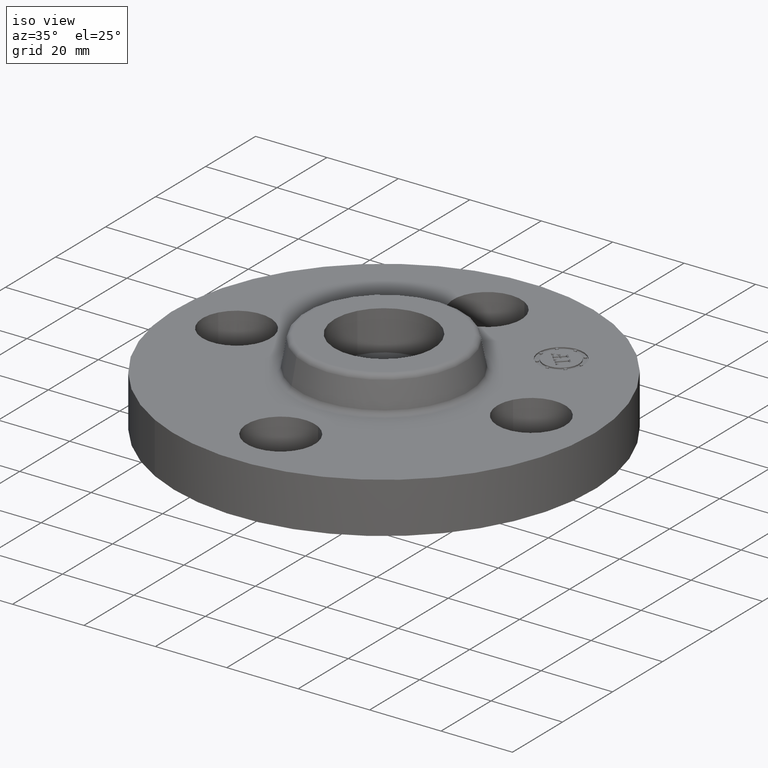
[diagram: clean part render]
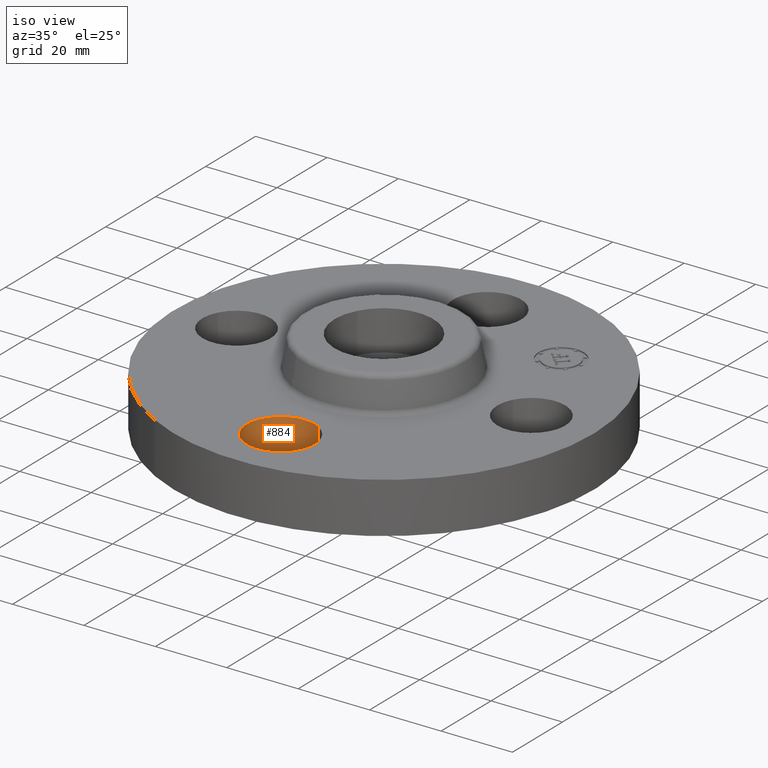
[diagram: same view with one face highlighted and labeled with its STEP entity id]
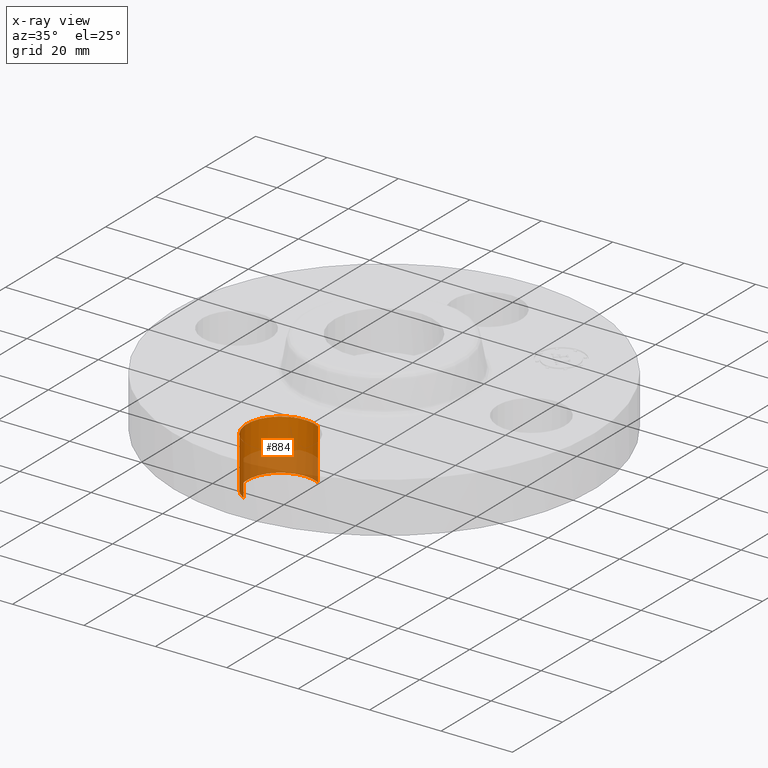
[diagram: x-ray of the same camera — body ghosted, the highlighted face saturated]
A machine part, iso view. The second image highlights one B-rep face of the part: STEP entity #884.
The next image is the same camera in x-ray: the body ghosted, the highlighted face saturated — about 39% of this face is hidden behind the body in this view.
In plain terms, the highlighted cylindrical surface (partial cylindrical patch) has radius 9.525 mm, axis along (0, 0, -1).
Its self-contained STEP definition (entity closure, byte-faithful):
#557=AXIS2_PLACEMENT_3D('Circle Axis2P3D',#555,#556,$) ;
#859=AXIS2_PLACEMENT_3D('Cylinder Axis2P3D',#856,#857,#858) ;
#550=CARTESIAN_POINT('Vertex',(0.179784576973,-1.2959065393,0.)) ;
#552=CARTESIAN_POINT('Vertex',(-0.179784576973,-1.95409346069,0.)) ;
#555=CARTESIAN_POINT('Axis2P3D Location',(-3.49676543189E-017,-1.62499999999,0.)) ;
#823=CARTESIAN_POINT('Line Origine',(0.179784576977,-1.2959065393,0.279999999998)) ;
#827=CARTESIAN_POINT('Vertex',(0.179784576973,-1.29590653933,0.560000000002)) ;
#830=CARTESIAN_POINT('Line Origine',(-0.179784576977,-1.95409346072,0.279999999998)) ;
#834=CARTESIAN_POINT('Vertex',(-0.179784576977,-1.95409346072,0.559999999987)) ;
#856=CARTESIAN_POINT('Axis2P3D Location',(-1.8023868212E-016,-1.62500000001,0.556062992128)) ;
#862=CARTESIAN_POINT('Control Point',(-0.179784576977,-1.95409346072,0.560000000002)) ;
#863=CARTESIAN_POINT('Control Point',(-0.231478456903,-1.92585296541,0.560000000001)) ;
#864=CARTESIAN_POINT('Control Point',(-0.27762732854,-1.88746240051,0.560000000001)) ;
#865=CARTESIAN_POINT('Control Point',(-0.315564920645,-1.84036533168,0.56)) ;
#866=CARTESIAN_POINT('Control Point',(-0.370929207243,-1.73383359426,0.559999999998)) ;
#867=CARTESIAN_POINT('Control Point',(-0.38190110985,-1.61427677655,0.559999999997)) ;
#868=CARTESIAN_POINT('Control Point',(-0.375424381748,-1.55414819117,0.559999999996)) ;
#869=CARTESIAN_POINT('Control Point',(-0.339243530298,-1.43967041474,0.559999999995)) ;
#870=CARTESIAN_POINT('Control Point',(-0.262462400496,-1.34737267147,0.559999999993)) ;
#871=CARTESIAN_POINT('Control Point',(-0.215365331668,-1.30943507936,0.559999999992)) ;
#872=CARTESIAN_POINT('Control Point',(-0.108833594252,-1.25407079277,0.559999999991)) ;
#873=CARTESIAN_POINT('Control Point',(0.0107232234562,-1.24309889016,0.55999999999)) ;
#874=CARTESIAN_POINT('Control Point',(0.0708518088378,-1.24957561826,0.559999999989)) ;
#875=CARTESIAN_POINT('Control Point',(0.128090697051,-1.26766604399,0.559999999988)) ;
#876=CARTESIAN_POINT('Control Point',(0.179784576977,-1.2959065393,0.559999999987)) ;
#556=DIRECTION('Axis2P3D Direction',(0.,0.,-0.0393700787402)) ;
#824=DIRECTION('Vector Direction',(0.,0.,-0.0393700787402)) ;
#831=DIRECTION('Vector Direction',(0.,0.,-0.0393700787402)) ;
#857=DIRECTION('Axis2P3D Direction',(0.,0.,-0.0393700787402)) ;
#858=DIRECTION('Axis2P3D XDirection',(-0.0188750212049,-0.0345504945626,0.)) ;
#825=VECTOR('Line Direction',#824,0.0393700787402) ;
#832=VECTOR('Line Direction',#831,0.0393700787402) ;
#879=ORIENTED_EDGE('',*,*,#836,.F.) ;
#880=ORIENTED_EDGE('',*,*,#559,.T.) ;
#881=ORIENTED_EDGE('',*,*,#829,.T.) ;
#882=ORIENTED_EDGE('',*,*,#877,.F.) ;
#884=ADVANCED_FACE('PartBody',(#883),#860,.F.) ;
#861=B_SPLINE_CURVE_WITH_KNOTS('',5,(#862,#863,#864,#865,#866,#867,#868,#869,#870,#871,#872,#873,#874,#875,#876),.UNSPECIFIED.,.F.,.U.,(6,3,3,3,6),(-14.9618350128,-7.48091750638,0.,7.48091750638,14.9618350128),.UNSPECIFIED.) ;
#558=CIRCLE('generated circle',#557,0.374999999988) ;
#860=CYLINDRICAL_SURFACE('generated cylinder',#859,0.375000000001) ;
#559=EDGE_CURVE('',#553,#551,#558,.T.) ;
#829=EDGE_CURVE('',#551,#828,#826,.F.) ;
#836=EDGE_CURVE('',#553,#835,#833,.F.) ;
#877=EDGE_CURVE('',#835,#828,#861,.T.) ;
#878=EDGE_LOOP('',(#879,#880,#881,#882)) ;
#883=FACE_OUTER_BOUND('',#878,.T.) ;
#826=LINE('Line',#823,#825) ;
#833=LINE('Line',#830,#832) ;
#551=VERTEX_POINT('',#550) ;
#553=VERTEX_POINT('',#552) ;
#828=VERTEX_POINT('',#827) ;
#835=VERTEX_POINT('',#834) ;